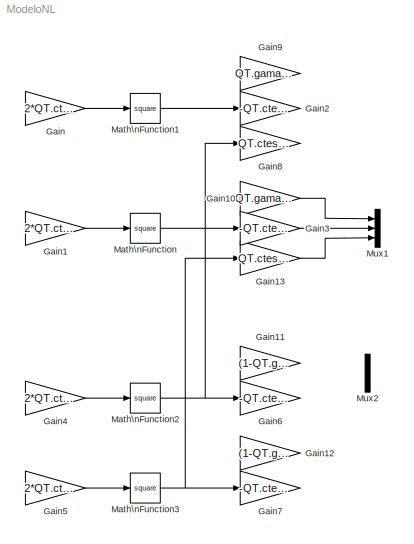
MODEL ModeloNL
KIND model
BLOCK [Gain] Gain
  Gain = 2*QT.ctes.g
  OutDataTypeStr = Inherit: Inherit via internal rule
  ParamDataTypeStr = Inherit: Inherit via internal rule
  SID = 4
  SaturateOnIntegerOverflow = off
BLOCK [Gain] Gain1
  Gain = 2*QT.ctes.g
  OutDataTypeStr = Inherit: Inherit via internal rule
  ParamDataTypeStr = Inherit: Inherit via internal rule
  SID = 6
  SaturateOnIntegerOverflow = off
BLOCK [Gain] Gain10
  Gain = QT.gama(2)*QT.ctes.k2/QT.ctes.A2
  OutDataTypeStr = Inherit: Inherit via internal rule
  ParamDataTypeStr = Inherit: Inherit via internal rule
  SID = 18
  SaturateOnIntegerOverflow = off
BLOCK [Gain] Gain11
  Gain = (1-QT.gama(2))*QT.ctes.k2/QT.ctes.A3
  OutDataTypeStr = Inherit: Inherit via internal rule
  ParamDataTypeStr = Inherit: Inherit via internal rule
  SID = 19
  SaturateOnIntegerOverflow = off
BLOCK [Gain] Gain12
  Gain = (1-QT.gama(1))*QT.ctes.k1/QT.ctes.A4
  OutDataTypeStr = Inherit: Inherit via internal rule
  ParamDataTypeStr = Inherit: Inherit via internal rule
  SID = 20
  SaturateOnIntegerOverflow = off
BLOCK [Gain] Gain13
  Gain = QT.ctes.a4/QT.ctes.A2
  OutDataTypeStr = Inherit: Inherit via internal rule
  ParamDataTypeStr = Inherit: Inherit via internal rule
  SID = 21
  SaturateOnIntegerOverflow = off
BLOCK [Gain] Gain2
  Gain = -QT.ctes.a1/QT.ctes.A1
  OutDataTypeStr = Inherit: Inherit via internal rule
  ParamDataTypeStr = Inherit: Inherit via internal rule
  SID = 8
  SaturateOnIntegerOverflow = off
BLOCK [Gain] Gain3
  Gain = -QT.ctes.a2/QT.ctes.A2
  OutDataTypeStr = Inherit: Inherit via internal rule
  ParamDataTypeStr = Inherit: Inherit via internal rule
  SID = 9
  SaturateOnIntegerOverflow = off
BLOCK [Gain] Gain4
  Gain = 2*QT.ctes.g
  OutDataTypeStr = Inherit: Inherit via internal rule
  ParamDataTypeStr = Inherit: Inherit via internal rule
  SID = 10
  SaturateOnIntegerOverflow = off
BLOCK [Gain] Gain5
  Gain = 2*QT.ctes.g
  OutDataTypeStr = Inherit: Inherit via internal rule
  ParamDataTypeStr = Inherit: Inherit via internal rule
  SID = 12
  SaturateOnIntegerOverflow = off
BLOCK [Gain] Gain6
  Gain = -QT.ctes.a3/QT.ctes.A3
  OutDataTypeStr = Inherit: Inherit via internal rule
  ParamDataTypeStr = Inherit: Inherit via internal rule
  SID = 14
  SaturateOnIntegerOverflow = off
BLOCK [Gain] Gain7
  Gain = -QT.ctes.a4/QT.ctes.A4
  OutDataTypeStr = Inherit: Inherit via internal rule
  ParamDataTypeStr = Inherit: Inherit via internal rule
  SID = 15
  SaturateOnIntegerOverflow = off
BLOCK [Gain] Gain8
  Gain = QT.ctes.a3/QT.ctes.A1
  OutDataTypeStr = Inherit: Inherit via internal rule
  ParamDataTypeStr = Inherit: Inherit via internal rule
  SID = 16
  SaturateOnIntegerOverflow = off
BLOCK [Gain] Gain9
  Gain = QT.gama(1)*QT.ctes.k1/QT.ctes.A1
  OutDataTypeStr = Inherit: Inherit via internal rule
  ParamDataTypeStr = Inherit: Inherit via internal rule
  SID = 17
  SaturateOnIntegerOverflow = off
BLOCK [Math] Math\nFunction
  Operator = square
  Ports = [1, 1]
  SID = 1
BLOCK [Math] Math\nFunction1
  Operator = square
  Ports = [1, 1]
  SID = 7
BLOCK [Math] Math\nFunction2
  Operator = square
  Ports = [1, 1]
  SID = 11
BLOCK [Math] Math\nFunction3
  Operator = square
  Ports = [1, 1]
  SID = 13
BLOCK [Mux] Mux1
  DisplayOption = bar
  Inputs = 3
  Ports = [3, 1]
  SID = 23
BLOCK [Mux] Mux2
  DisplayOption = bar
  Inputs = 2
  Ports = [2, 1]
  SID = 24
LINE Gain10:1 -> Mux1:1
LINE Gain13:1 -> Mux1:3
LINE Gain1:1 -> Math\nFunction:1
LINE Gain3:1 -> Mux1:2
LINE Gain4:1 -> Math\nFunction2:1
LINE Gain5:1 -> Math\nFunction3:1
LINE Gain:1 -> Math\nFunction1:1
LINE Math\nFunction1:1 -> Gain2:1
NET Math\nFunction2:1 -> Gain6:1, Gain8:1
NET Math\nFunction3:1 -> Gain13:1, Gain7:1
LINE Math\nFunction:1 -> Gain3:1
note: NET lines group one-source signal fan-out (src -> all destinations, sorted); 1:1 wires keep LINE
